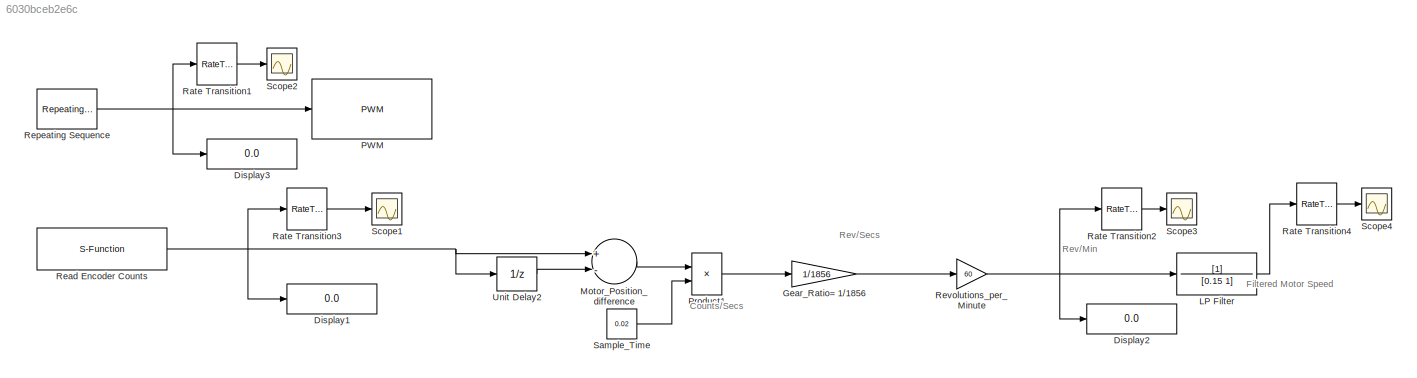
MODEL slx_6030bceb2e6c
KIND model
CONFIG AbsTol = auto
CONFIG EnableMultiTasking = on
CONFIG FixedStep = 0.02
CONFIG MaxStep = auto
CONFIG MinStep = auto
CONFIG RelTol = 1e-3
CONFIG SampleTimeConstraint = Unconstrained
CONFIG Solver = FixedStepAuto
CONFIG SolverName = FixedStepAuto
CONFIG StartTime = 0.0
CONFIG StopTime = 500
BLOCK [Display] Display1
  Decimation = 1
  Ports = [1]
BLOCK [Display] Display2
  Decimation = 1
  Ports = [1]
BLOCK [Display] Display3
  Decimation = 1
  Ports = [1]
BLOCK [Gain] Gear_Ratio= 1//1856
  Gain = 1/1856
  OutDataTypeStr = Inherit: Inherit via internal rule
  ParamDataTypeStr = Inherit: Inherit via internal rule
  SaturateOnIntegerOverflow = off
BLOCK [TransferFcn] LP Filter
  Denominator = [0.15 1]
BLOCK [Sum] Motor_Position_difference
  InputSameDT = off
  Inputs = +-
  OutDataTypeStr = Inherit: Inherit via internal rule
  Ports = [2, 1]
  SaturateOnIntegerOverflow = off
BLOCK [Reference] PWM  REF=arduinolib/PWM
  Ports = [1]
  SourceBlock = arduinolib/PWM
  SourceProductBaseCode = ARDUINO
  SourceProductName = Simulink Support Package for Arduino Hardware
  SourceType = Arduino PWM
BLOCK [Product] Product1
  InputSameDT = off
  Inputs = */
  OutDataTypeStr = Inherit: Inherit via internal rule
  Ports = [2, 1]
  RndMeth = Floor
  SaturateOnIntegerOverflow = off
BLOCK [RateTransition] Rate Transition1
BLOCK [RateTransition] Rate Transition2
BLOCK [RateTransition] Rate Transition3
BLOCK [RateTransition] Rate Transition4
BLOCK [S-Function] Read Encoder Counts
  CopyFcn = set_param(gcbh,'LinkStatus','none')
  EnableBusSupport = off
  FunctionName = sfcn_encoder
  InitFcn = try, set_param(gcb,'FunctionName','sfcn_encoder'), end
  OpenFcn = sfunctionwizard(gcbh)
  Parameters = uint8(0),uint8(2),uint8(3)
  Ports = [0, 1]
  PreSaveFcn = try, set_param(gcb,'FunctionName','sfcn_encoder'), end
  SFcnIsStateOwnerBlock = off
  SFunctionDeploymentMode = off
  SFunctionModules = sfcn_encoder_wrapper
BLOCK [Reference] Repeating Sequence  REF=simulink/Sources/Repeating
Sequence
  Ports = [0, 1]
  SourceBlock = simulink/Sources/Repeating\nSequence
  SourceProductBaseCode = SL
  SourceProductName = Simulink
  SourceType = Repeating table
BLOCK [Gain] Revolutions_per_Minute
  Gain = 60
  OutDataTypeStr = Inherit: Inherit via internal rule
  ParamDataTypeStr = Inherit: Inherit via internal rule
  SaturateOnIntegerOverflow = off
BLOCK [Constant] Sample_Time
  Value = 0.02
BLOCK [Scope] Scope1
  Floating = off
  NumInputPorts = 1
  Ports = [1]
  ScopeSpecificationString = Simulink.scopes.TimeScopeBlockCfg('CurrentConfiguration', extmgr.ConfigurationSet(extmgr.Configuration('Core','General UI',true),extmgr.Configuration('Core','Source UI',true),extmgr.Configuration('Sources','WiredSimulink',true,'DataLoggingSaveFormat','Array','DataLoggingDecimation','1','DataLoggingDecimateData',true,'DataLogging',true,'DataLoggingVariableName','Encoder_Output_Count','SampleTime','...<+1742ch>
BLOCK [Scope] Scope2
  Floating = off
  NumInputPorts = 1
  Ports = [1]
  ScopeSpecificationString = Simulink.scopes.TimeScopeBlockCfg('CurrentConfiguration', extmgr.ConfigurationSet(extmgr.Configuration('Core','General UI',true),extmgr.Configuration('Core','Source UI',true),extmgr.Configuration('Sources','WiredSimulink',true,'DataLoggingSaveFormat','Array','DataLoggingDecimation','1','DataLoggingDecimateData',true,'DataLogging',true,'SampleTime','0.2','DataLoggingVariableName','PWM_Input'),extmg...<+1715ch>
BLOCK [Scope] Scope3
  Floating = off
  NumInputPorts = 1
  Ports = [1]
  ScopeSpecificationString = Simulink.scopes.TimeScopeBlockCfg('CurrentConfiguration', extmgr.ConfigurationSet(extmgr.Configuration('Core','General UI',true),extmgr.Configuration('Core','Source UI',true),extmgr.Configuration('Sources','WiredSimulink',true,'DataLoggingSaveFormat','Array','DataLoggingDecimation','1','DataLoggingDecimateData',true,'DataLogging',true,'DataLoggingVariableName','Motor_Speed_RPM_Unfiltered','SampleT...<+1732ch>
BLOCK [Scope] Scope4
  Floating = off
  NumInputPorts = 1
  Ports = [1]
  ScopeSpecificationString = Simulink.scopes.TimeScopeBlockCfg('CurrentConfiguration', extmgr.ConfigurationSet(extmgr.Configuration('Core','General UI',true),extmgr.Configuration('Core','Source UI',true),extmgr.Configuration('Sources','WiredSimulink',true,'DataLoggingSaveFormat','Array','DataLoggingDecimation','1','DataLoggingDecimateData',true,'DataLogging',true,'DataLoggingVariableName','Motor_Speed_RPM_Filtered','SampleTim...<+1730ch>
BLOCK [UnitDelay] Unit Delay2
  HasFrameUpgradeWarning = on
  SampleTime = -1
ANNOTATION (root): Counts/Secs
ANNOTATION (root): Filtered Motor Speed
ANNOTATION (root): Rev/Min
ANNOTATION (root): Rev/Secs
LINE Gear_Ratio= 1//1856:1 -> Revolutions_per_Minute:1
LINE LP Filter:1 -> Rate Transition4:1
LINE Motor_Position_difference:1 -> Product1:1
LINE Product1:1 -> Gear_Ratio= 1//1856:1
LINE Rate Transition1:1 -> Scope2:1
LINE Rate Transition2:1 -> Scope3:1
LINE Rate Transition3:1 -> Scope1:1
LINE Rate Transition4:1 -> Scope4:1
NET Read Encoder Counts:1 -> Display1:1, Motor_Position_difference:1, Rate Transition3:1, Unit Delay2:1
NET Repeating Sequence:1 -> Display3:1, PWM:1, Rate Transition1:1
NET Revolutions_per_Minute:1 -> Display2:1, LP Filter:1, Rate Transition2:1
LINE Sample_Time:1 -> Product1:2
LINE Unit Delay2:1 -> Motor_Position_difference:2
note: NET lines group one-source signal fan-out (src -> all destinations, sorted); 1:1 wires keep LINE
